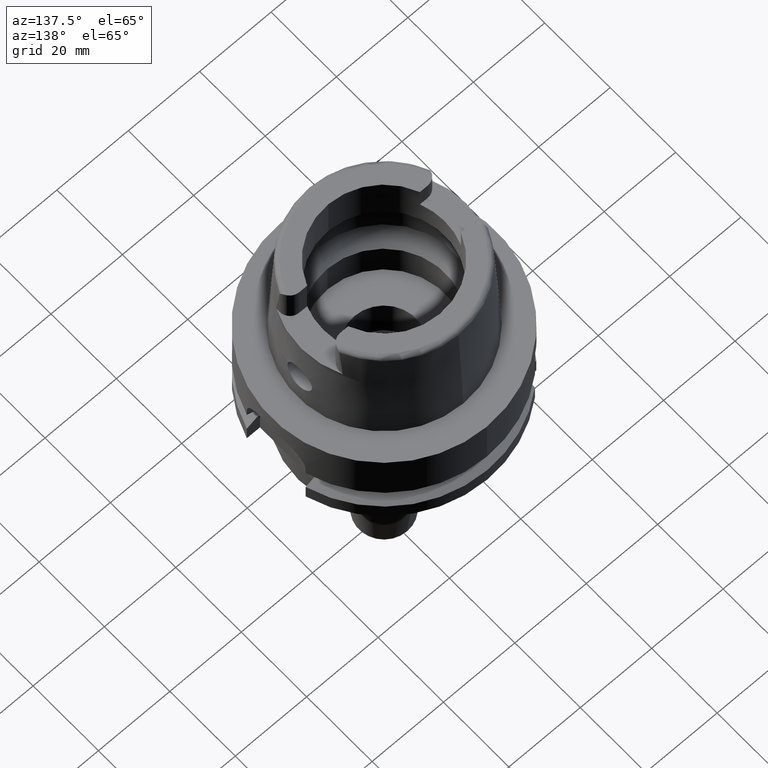
[diagram: clean part render]
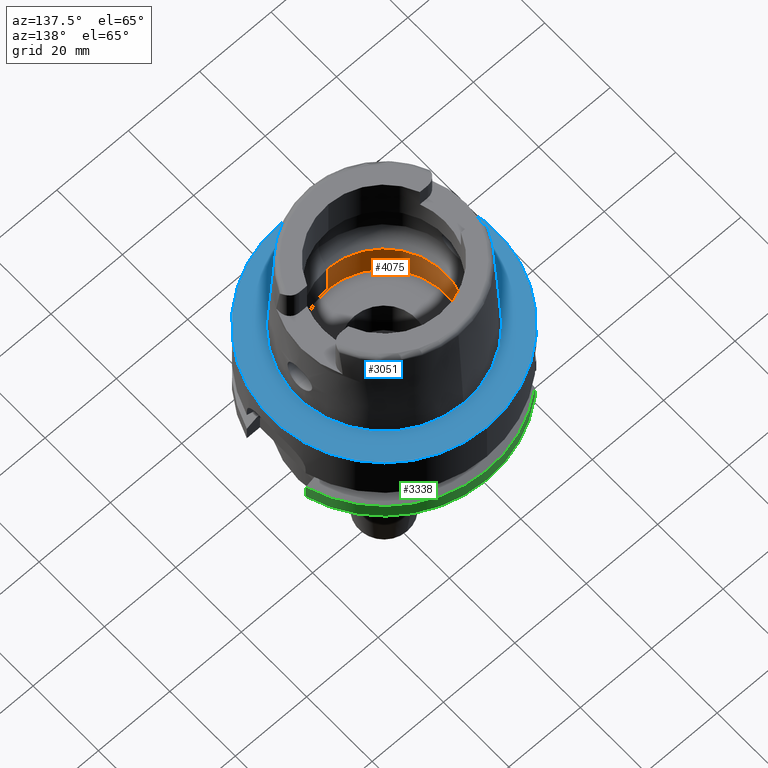
[diagram: same view with three faces highlighted in distinct colors, each labeled with its STEP entity id]
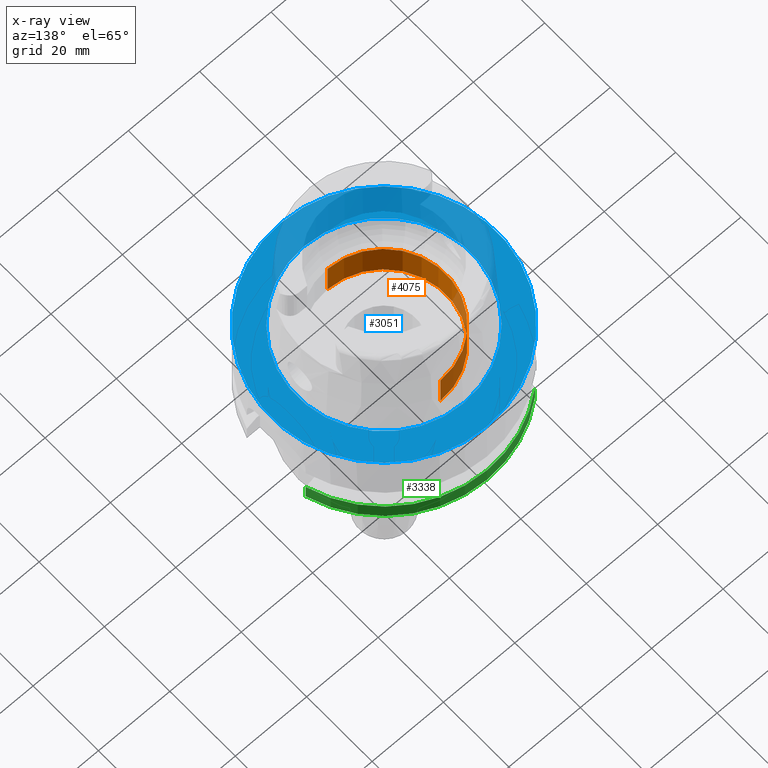
[diagram: x-ray of the same camera — body ghosted, the three highlighted faces saturated]
A machine part, auxiliary view with three faces highlighted in distinct colors.
The next image is the same camera in x-ray (body ghosted, the three faces saturated) — at least one of them is partly hidden behind the body in this view.
Their STEP definitions:

[orange] entity #4075 — the highlighted cylindrical surface (partial cylindrical patch) has radius 17.25 mm, axis along (0, 0, -1).
#1966=CARTESIAN_POINT('',(0.E0,1.691237229622E-14,-9.95E0));
#1967=DIRECTION('',(0.E0,0.E0,-1.E0));
#1968=DIRECTION('',(0.E0,-1.E0,0.E0));
#1969=AXIS2_PLACEMENT_3D('',#1966,#1967,#1968);
#1998=DIRECTION('',(0.E0,0.E0,1.E0));
#1999=VECTOR('',#1998,9.95E0);
#2000=CARTESIAN_POINT('',(0.E0,-1.725E1,-9.95E0));
#2001=LINE('',#2000,#1999);
#2005=CARTESIAN_POINT('',(0.E0,1.691237229622E-14,7.815970093361E-14));
#2006=DIRECTION('',(0.E0,0.E0,-1.E0));
#2007=DIRECTION('',(0.E0,-1.E0,0.E0));
#2008=AXIS2_PLACEMENT_3D('',#2005,#2006,#2007);
#2013=DIRECTION('',(0.E0,0.E0,1.E0));
#2014=VECTOR('',#2013,9.95E0);
#2015=CARTESIAN_POINT('',(0.E0,1.725E1,-9.95E0));
#2016=LINE('',#2015,#2014);
#2533=CARTESIAN_POINT('',(0.E0,-1.725E1,-9.95E0));
#2534=CARTESIAN_POINT('',(0.E0,1.725E1,-9.95E0));
#2535=VERTEX_POINT('',#2533);
#2536=VERTEX_POINT('',#2534);
#2537=CARTESIAN_POINT('',(0.E0,1.725E1,7.105427357601E-14));
#2538=VERTEX_POINT('',#2537);
#2539=CARTESIAN_POINT('',(0.E0,-1.725E1,7.105427357601E-14));
#2540=VERTEX_POINT('',#2539);
#4061=CARTESIAN_POINT('',(0.E0,1.691237229622E-14,3.81E1));
#4062=DIRECTION('',(0.E0,0.E0,-1.E0));
#4063=DIRECTION('',(0.E0,-1.E0,0.E0));
#4064=AXIS2_PLACEMENT_3D('',#4061,#4062,#4063);
#4065=CYLINDRICAL_SURFACE('',#4064,1.725E1);
#4067=ORIENTED_EDGE('',*,*,#4066,.F.);
#4068=ORIENTED_EDGE('',*,*,#4050,.F.);
#4070=ORIENTED_EDGE('',*,*,#4069,.T.);
#4072=ORIENTED_EDGE('',*,*,#4071,.T.);
#4073=EDGE_LOOP('',(#4067,#4068,#4070,#4072));
#4074=FACE_OUTER_BOUND('',#4073,.F.);
#1970=CIRCLE('',#1969,1.725E1);
#2009=CIRCLE('',#2008,1.725E1);
#4050=EDGE_CURVE('',#2535,#2536,#1970,.T.);
#4066=EDGE_CURVE('',#2536,#2538,#2016,.T.);
#4069=EDGE_CURVE('',#2535,#2540,#2001,.T.);
#4071=EDGE_CURVE('',#2540,#2538,#2009,.T.);
#4075=ADVANCED_FACE('',(#4074),#4065,.F.);

[blue] entity #3051 — the highlighted planar face has unit normal (0, 0, -1).
#633=CARTESIAN_POINT('',(0.E0,1.691237229622E-14,8.526512829121E-14));
#634=DIRECTION('',(0.E0,0.E0,-1.E0));
#635=DIRECTION('',(0.E0,-1.E0,0.E0));
#636=AXIS2_PLACEMENT_3D('',#633,#634,#635);
#641=CARTESIAN_POINT('',(0.E0,1.691237229622E-14,8.526512829121E-14));
#642=DIRECTION('',(0.E0,0.E0,-1.E0));
#643=DIRECTION('',(0.E0,1.E0,0.E0));
#644=AXIS2_PLACEMENT_3D('',#641,#642,#643);
#649=CARTESIAN_POINT('',(0.E0,1.413609354012E-14,1.136868377216E-13));
#650=DIRECTION('',(0.E0,0.E0,1.E0));
#651=DIRECTION('',(0.E0,-1.E0,0.E0));
#652=AXIS2_PLACEMENT_3D('',#649,#650,#651);
#657=CARTESIAN_POINT('',(0.E0,1.413609354012E-14,1.136868377216E-13));
#658=DIRECTION('',(0.E0,0.E0,1.E0));
#659=DIRECTION('',(0.E0,1.E0,0.E0));
#660=AXIS2_PLACEMENT_3D('',#657,#658,#659);
#2403=CARTESIAN_POINT('',(0.E0,-2.431503482329E1,1.882938249764E-13));
#2404=VERTEX_POINT('',#2403);
#2405=CARTESIAN_POINT('',(0.E0,2.431503482329E1,1.136868377216E-13));
#2406=VERTEX_POINT('',#2405);
#2413=CARTESIAN_POINT('',(0.E0,-3.15E1,8.526512829121E-14));
#2414=CARTESIAN_POINT('',(0.E0,3.15E1,8.526512829121E-14));
#2415=VERTEX_POINT('',#2413);
#2416=VERTEX_POINT('',#2414);
#3036=CARTESIAN_POINT('',(0.E0,1.224646799147E-14,0.E0));
#3037=DIRECTION('',(0.E0,0.E0,-1.E0));
#3038=DIRECTION('',(0.E0,-1.E0,0.E0));
#3039=AXIS2_PLACEMENT_3D('',#3036,#3037,#3038);
#3040=PLANE('',#3039);
#3042=ORIENTED_EDGE('',*,*,#3041,.T.);
#3044=ORIENTED_EDGE('',*,*,#3043,.T.);
#3045=EDGE_LOOP('',(#3042,#3044));
#3046=FACE_OUTER_BOUND('',#3045,.F.);
#3047=ORIENTED_EDGE('',*,*,#2909,.T.);
#3048=ORIENTED_EDGE('',*,*,#3010,.T.);
#3049=EDGE_LOOP('',(#3047,#3048));
#3050=FACE_BOUND('',#3049,.F.);
#637=CIRCLE('',#636,3.15E1);
#645=CIRCLE('',#644,3.15E1);
#653=CIRCLE('',#652,2.431503482329E1);
#661=CIRCLE('',#660,2.431503482329E1);
#2909=EDGE_CURVE('',#2404,#2406,#653,.T.);
#3010=EDGE_CURVE('',#2406,#2404,#661,.T.);
#3041=EDGE_CURVE('',#2415,#2416,#637,.T.);
#3043=EDGE_CURVE('',#2416,#2415,#645,.T.);
#3051=ADVANCED_FACE('',(#3046,#3050),#3040,.F.);

[green] entity #3338 — the highlighted cylindrical surface (partial cylindrical patch) has radius 31.5 mm, axis along (0, 0, -1).
#1039=CARTESIAN_POINT('',(0.E0,1.691237229622E-14,-2.6E1));
#1040=DIRECTION('',(0.E0,0.E0,1.E0));
#1041=DIRECTION('',(9.583148474999E-1,2.857142857143E-1,0.E0));
#1042=AXIS2_PLACEMENT_3D('',#1039,#1040,#1041);
#1047=CARTESIAN_POINT('',(0.E0,1.691237229622E-14,-2.6E1));
#1048=DIRECTION('',(0.E0,0.E0,1.E0));
#1049=DIRECTION('',(0.E0,1.E0,0.E0));
#1050=AXIS2_PLACEMENT_3D('',#1047,#1048,#1049);
#1088=DIRECTION('',(-6.539363271905E-7,-5.374187853484E-7,-9.999999999996E-1));
#1089=VECTOR('',#1088,4.622511760003E0);
#1090=CARTESIAN_POINT('',(-1.999999697717E1,2.433618953150E1,-2.137748824E1));
#1091=LINE('',#1090,#1089);
#1095=DIRECTION('',(9.390697615973E-9,-3.149704628767E-8,1.E0));
#1096=VECTOR('',#1095,4.622502099501E0);
#1097=CARTESIAN_POINT('',(3.018691769625E1,9.E0,-2.6E1));
#1098=LINE('',#1097,#1096);
#1536=CARTESIAN_POINT('',(0.E0,0.E0,-2.137749907476E1));
#1537=DIRECTION('',(0.E0,0.E0,-1.E0));
#1538=DIRECTION('',(-6.349206349206E-1,7.725773665802E-1,0.E0));
#1539=AXIS2_PLACEMENT_3D('',#1536,#1537,#1538);
#1544=CARTESIAN_POINT('',(0.E0,0.E0,-2.137749907476E1));
#1545=DIRECTION('',(0.E0,0.E0,-1.E0));
#1546=DIRECTION('',(0.E0,1.E0,0.E0));
#1547=AXIS2_PLACEMENT_3D('',#1544,#1545,#1546);
#2437=CARTESIAN_POINT('',(-2.E1,2.433618704728E1,-2.6E1));
#2439=VERTEX_POINT('',#2437);
#2440=CARTESIAN_POINT('',(-1.999999697717E1,2.433618953150E1,-2.137748824E1));
#2441=VERTEX_POINT('',#2440);
#2469=CARTESIAN_POINT('',(3.018691769625E1,9.E0,-2.6E1));
#2470=VERTEX_POINT('',#2469);
#2471=CARTESIAN_POINT('',(0.E0,3.15E1,-2.6E1));
#2472=VERTEX_POINT('',#2471);
#2622=CARTESIAN_POINT('',(3.018691773966E1,8.999999854405E0,-2.137749790050E1));
#2623=VERTEX_POINT('',#2622);
#2624=CARTESIAN_POINT('',(-1.776356839400E-14,3.15E1,-2.137749907476E1));
#2625=VERTEX_POINT('',#2624);
#3322=CARTESIAN_POINT('',(0.E0,1.691237229622E-14,3.81E1));
#3323=DIRECTION('',(0.E0,0.E0,-1.E0));
#3324=DIRECTION('',(0.E0,-1.E0,0.E0));
#3325=AXIS2_PLACEMENT_3D('',#3322,#3323,#3324);
#3326=CYLINDRICAL_SURFACE('',#3325,3.15E1);
#3327=ORIENTED_EDGE('',*,*,#3311,.T.);
#3328=ORIENTED_EDGE('',*,*,#3294,.F.);
#3329=ORIENTED_EDGE('',*,*,#3292,.F.);
#3331=ORIENTED_EDGE('',*,*,#3330,.T.);
#3333=ORIENTED_EDGE('',*,*,#3332,.F.);
#3335=ORIENTED_EDGE('',*,*,#3334,.F.);
#3336=EDGE_LOOP('',(#3327,#3328,#3329,#3331,#3333,#3335));
#3337=FACE_OUTER_BOUND('',#3336,.F.);
#1043=CIRCLE('',#1042,3.15E1);
#1051=CIRCLE('',#1050,3.15E1);
#1540=CIRCLE('',#1539,3.15E1);
#1548=CIRCLE('',#1547,3.15E1);
#3292=EDGE_CURVE('',#2470,#2472,#1043,.T.);
#3294=EDGE_CURVE('',#2472,#2439,#1051,.T.);
#3311=EDGE_CURVE('',#2441,#2439,#1091,.T.);
#3330=EDGE_CURVE('',#2470,#2623,#1098,.T.);
#3332=EDGE_CURVE('',#2625,#2623,#1548,.T.);
#3334=EDGE_CURVE('',#2441,#2625,#1540,.T.);
#3338=ADVANCED_FACE('',(#3337),#3326,.T.);